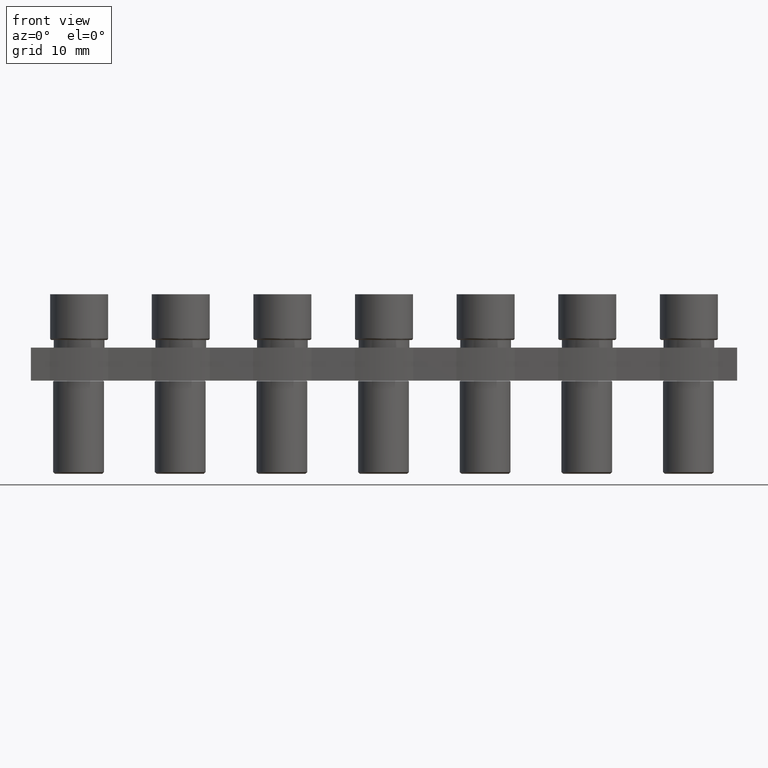
[diagram: clean part render]
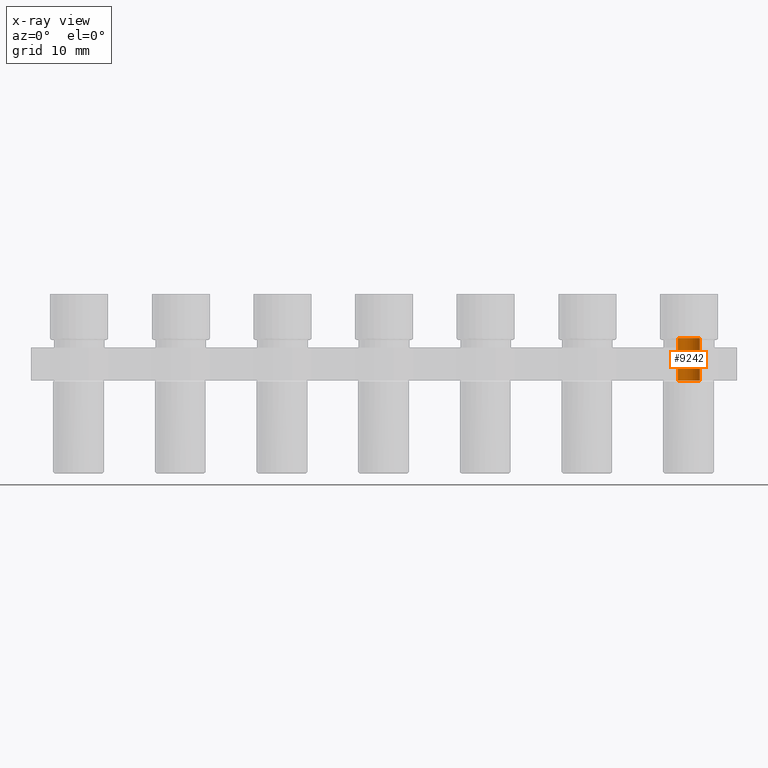
[diagram: x-ray — body ghosted, one internal face saturated and labeled with its STEP entity id]
A machine part, front view, then the same camera in x-ray: the body is ghosted and one INTERNAL B-rep face — a face not visible from any outside direction — is saturated and labeled: STEP entity #9242.
In plain terms, the highlighted cylindrical surface (edge-blend (fillet) strip) has radius 1.3 mm, axis along (0, 0, -1).
Its self-contained STEP definition (entity closure, byte-faithful):
#826 = CARTESIAN_POINT ( 'NONE',  ( 12.00000000000000000, 1.465963500825148300E-015, 0.2156922148392366500 ) ) ;
#827 = DIRECTION ( 'NONE',  ( 0.0000000000000000000, 0.0000000000000000000, -1.000000000000000000 ) ) ;
#830 = DIRECTION ( 'NONE',  ( -1.000000000000000000, 0.0000000000000000000, 0.0000000000000000000 ) ) ;
#953 = DIRECTION ( 'NONE',  ( -1.000000000000000000, 0.0000000000000000000, 0.0000000000000000000 ) ) ;
#962 = CARTESIAN_POINT ( 'NONE',  ( 12.00000000000000000, 1.465963500825148300E-015, -4.800000000000002500 ) ) ;
#974 = DIRECTION ( 'NONE',  ( -0.0000000000000000000, -0.0000000000000000000, 1.000000000000000000 ) ) ;
#1092 = VERTEX_POINT ( 'NONE', #4895 ) ;
#1113 = VERTEX_POINT ( 'NONE', #4922 ) ;
#1126 = VERTEX_POINT ( 'NONE', #4900 ) ;
#1130 = VERTEX_POINT ( 'NONE', #4937 ) ;
#1517 = EDGE_LOOP ( 'NONE', ( #6611, #6629, #6670, #6608 ) ) ;
#3276 = CIRCLE ( 'NONE', #3277, 1.300000000000000700 ) ;
#3277 = AXIS2_PLACEMENT_3D ( 'NONE', #962, #974, #953 ) ;
#4200 = AXIS2_PLACEMENT_3D ( 'NONE', #826, #827, #830 ) ;
#4214 = CIRCLE ( 'NONE', #4200, 1.300000000000000700 ) ;
#4895 = CARTESIAN_POINT ( 'NONE',  ( 10.69999999999999900, 1.465963500825148300E-015, -4.800000000000002500 ) ) ;
#4900 = CARTESIAN_POINT ( 'NONE',  ( 13.30000000000000100, 1.625167584714304300E-015, 0.2156922148392366500 ) ) ;
#4922 = CARTESIAN_POINT ( 'NONE',  ( 10.69999999999999900, 1.465963500825148300E-015, 0.2156922148392366500 ) ) ;
#4937 = CARTESIAN_POINT ( 'NONE',  ( 13.30000000000000100, 1.625167584714304300E-015, -4.800000000000002500 ) ) ;
#5635 = CARTESIAN_POINT ( 'NONE',  ( 12.00000000000000000, 1.465963500825148300E-015, -18.28430778516076700 ) ) ;
#5639 = DIRECTION ( 'NONE',  ( -1.000000000000000000, 0.0000000000000000000, 0.0000000000000000000 ) ) ;
#5648 = CYLINDRICAL_SURFACE ( 'NONE', #7785, 1.300000000000000700 ) ;
#5655 = DIRECTION ( 'NONE',  ( 0.0000000000000000000, 0.0000000000000000000, -1.000000000000000000 ) ) ;
#6569 = FACE_OUTER_BOUND ( 'NONE', #1517, .T. ) ;
#6608 = ORIENTED_EDGE ( 'NONE', *, *, #9084, .F. ) ;
#6611 = ORIENTED_EDGE ( 'NONE', *, *, #8945, .T. ) ;
#6629 = ORIENTED_EDGE ( 'NONE', *, *, #9008, .T. ) ;
#6670 = ORIENTED_EDGE ( 'NONE', *, *, #8982, .T. ) ;
#7325 = VECTOR ( 'NONE', #9774, 1000.000000000000000 ) ;
#7426 = VECTOR ( 'NONE', #10109, 1000.000000000000000 ) ;
#7785 = AXIS2_PLACEMENT_3D ( 'NONE', #5635, #5655, #5639 ) ;
#8945 = EDGE_CURVE ( 'NONE', #1113, #1126, #4214, .T. ) ;
#8982 = EDGE_CURVE ( 'NONE', #1130, #1092, #3276, .T. ) ;
#9008 = EDGE_CURVE ( 'NONE', #1126, #1130, #9743, .T. ) ;
#9084 = EDGE_CURVE ( 'NONE', #1113, #1092, #10113, .T. ) ;
#9242 = ADVANCED_FACE ( 'NONE', ( #6569 ), #5648, .T. ) ;
#9743 = LINE ( 'NONE', #9783, #7325 ) ;
#9774 = DIRECTION ( 'NONE',  ( 0.0000000000000000000, 0.0000000000000000000, -1.000000000000000000 ) ) ;
#9783 = CARTESIAN_POINT ( 'NONE',  ( 13.30000000000000100, 1.625167584714304300E-015, -18.28430778516076700 ) ) ;
#10109 = DIRECTION ( 'NONE',  ( 0.0000000000000000000, 0.0000000000000000000, -1.000000000000000000 ) ) ;
#10113 = LINE ( 'NONE', #10118, #7426 ) ;
#10118 = CARTESIAN_POINT ( 'NONE',  ( 10.69999999999999900, 1.465963500825148300E-015, -18.28430778516076700 ) ) ;